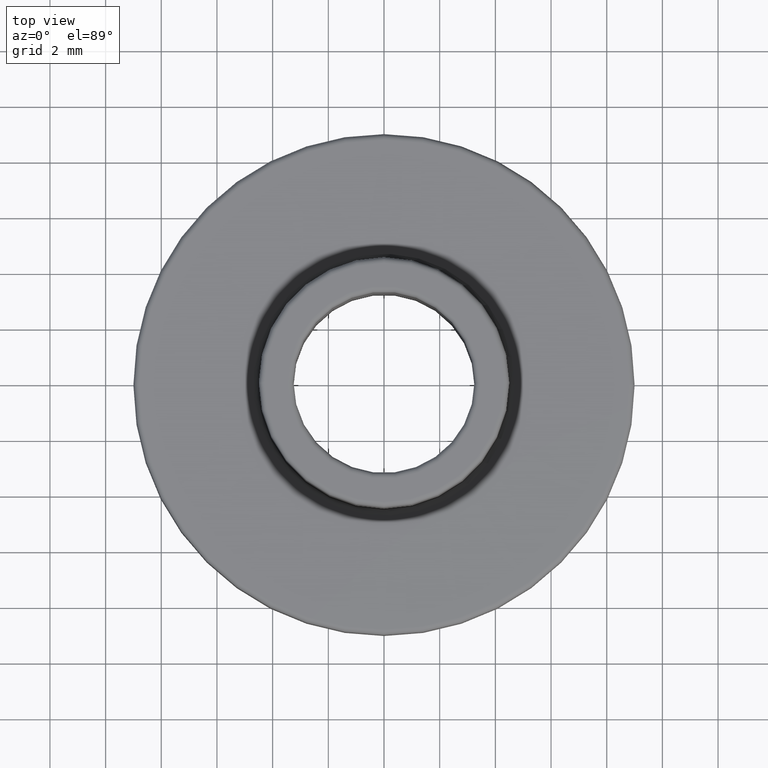
[diagram: clean part render]
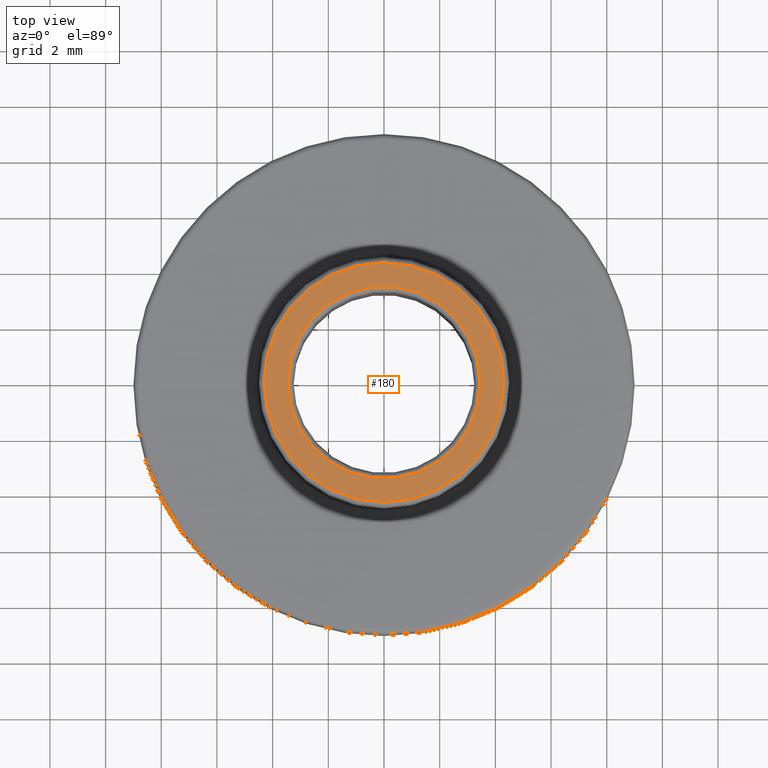
[diagram: same view with one face highlighted and labeled with its STEP entity id]
A machine part, top view. The second image highlights one B-rep face of the part: STEP entity #180.
In plain terms, the highlighted planar face has unit normal (0, 0, 1).
Its self-contained STEP definition (entity closure, byte-faithful):
#26=FACE_BOUND('',#54,.T.);
#29=PLANE('',#229);
#39=FACE_OUTER_BOUND('',#53,.T.);
#53=EDGE_LOOP('',(#152,#153));
#54=EDGE_LOOP('',(#154));
#72=CIRCLE('',#227,3.45);
#74=CIRCLE('',#230,4.3);
#75=CIRCLE('',#231,4.3);
#90=VERTEX_POINT('',#347);
#91=VERTEX_POINT('',#351);
#92=VERTEX_POINT('',#352);
#111=EDGE_CURVE('',#90,#90,#72,.T.);
#113=EDGE_CURVE('',#91,#92,#74,.T.);
#114=EDGE_CURVE('',#92,#91,#75,.T.);
#152=ORIENTED_EDGE('',*,*,#113,.F.);
#153=ORIENTED_EDGE('',*,*,#114,.F.);
#154=ORIENTED_EDGE('',*,*,#111,.F.);
#180=ADVANCED_FACE('',(#39,#26),#29,.T.);
#227=AXIS2_PLACEMENT_3D('',#348,#289,#290);
#229=AXIS2_PLACEMENT_3D('',#350,#293,#294);
#230=AXIS2_PLACEMENT_3D('',#353,#295,#296);
#231=AXIS2_PLACEMENT_3D('',#354,#297,#298);
#289=DIRECTION('center_axis',(0.,0.,1.));
#290=DIRECTION('ref_axis',(-1.,-1.22464679914735E-16,0.));
#293=DIRECTION('center_axis',(0.,0.,1.));
#294=DIRECTION('ref_axis',(1.,0.,0.));
#295=DIRECTION('center_axis',(0.,0.,-1.));
#296=DIRECTION('ref_axis',(-1.,0.,0.));
#297=DIRECTION('center_axis',(0.,0.,-1.));
#298=DIRECTION('ref_axis',(-1.,0.,0.));
#347=CARTESIAN_POINT('',(3.45,8.45006291411674E-16,4.5));
#348=CARTESIAN_POINT('Origin',(0.,0.,4.5));
#350=CARTESIAN_POINT('Origin',(-2.51521111380092E-16,1.02798428206033E-16,
4.5));
#351=CARTESIAN_POINT('',(4.3,-5.26598123633362E-16,4.5));
#352=CARTESIAN_POINT('',(-4.3,-5.26598123633362E-16,4.5));
#353=CARTESIAN_POINT('Origin',(0.,0.,4.5));
#354=CARTESIAN_POINT('Origin',(0.,0.,4.5));